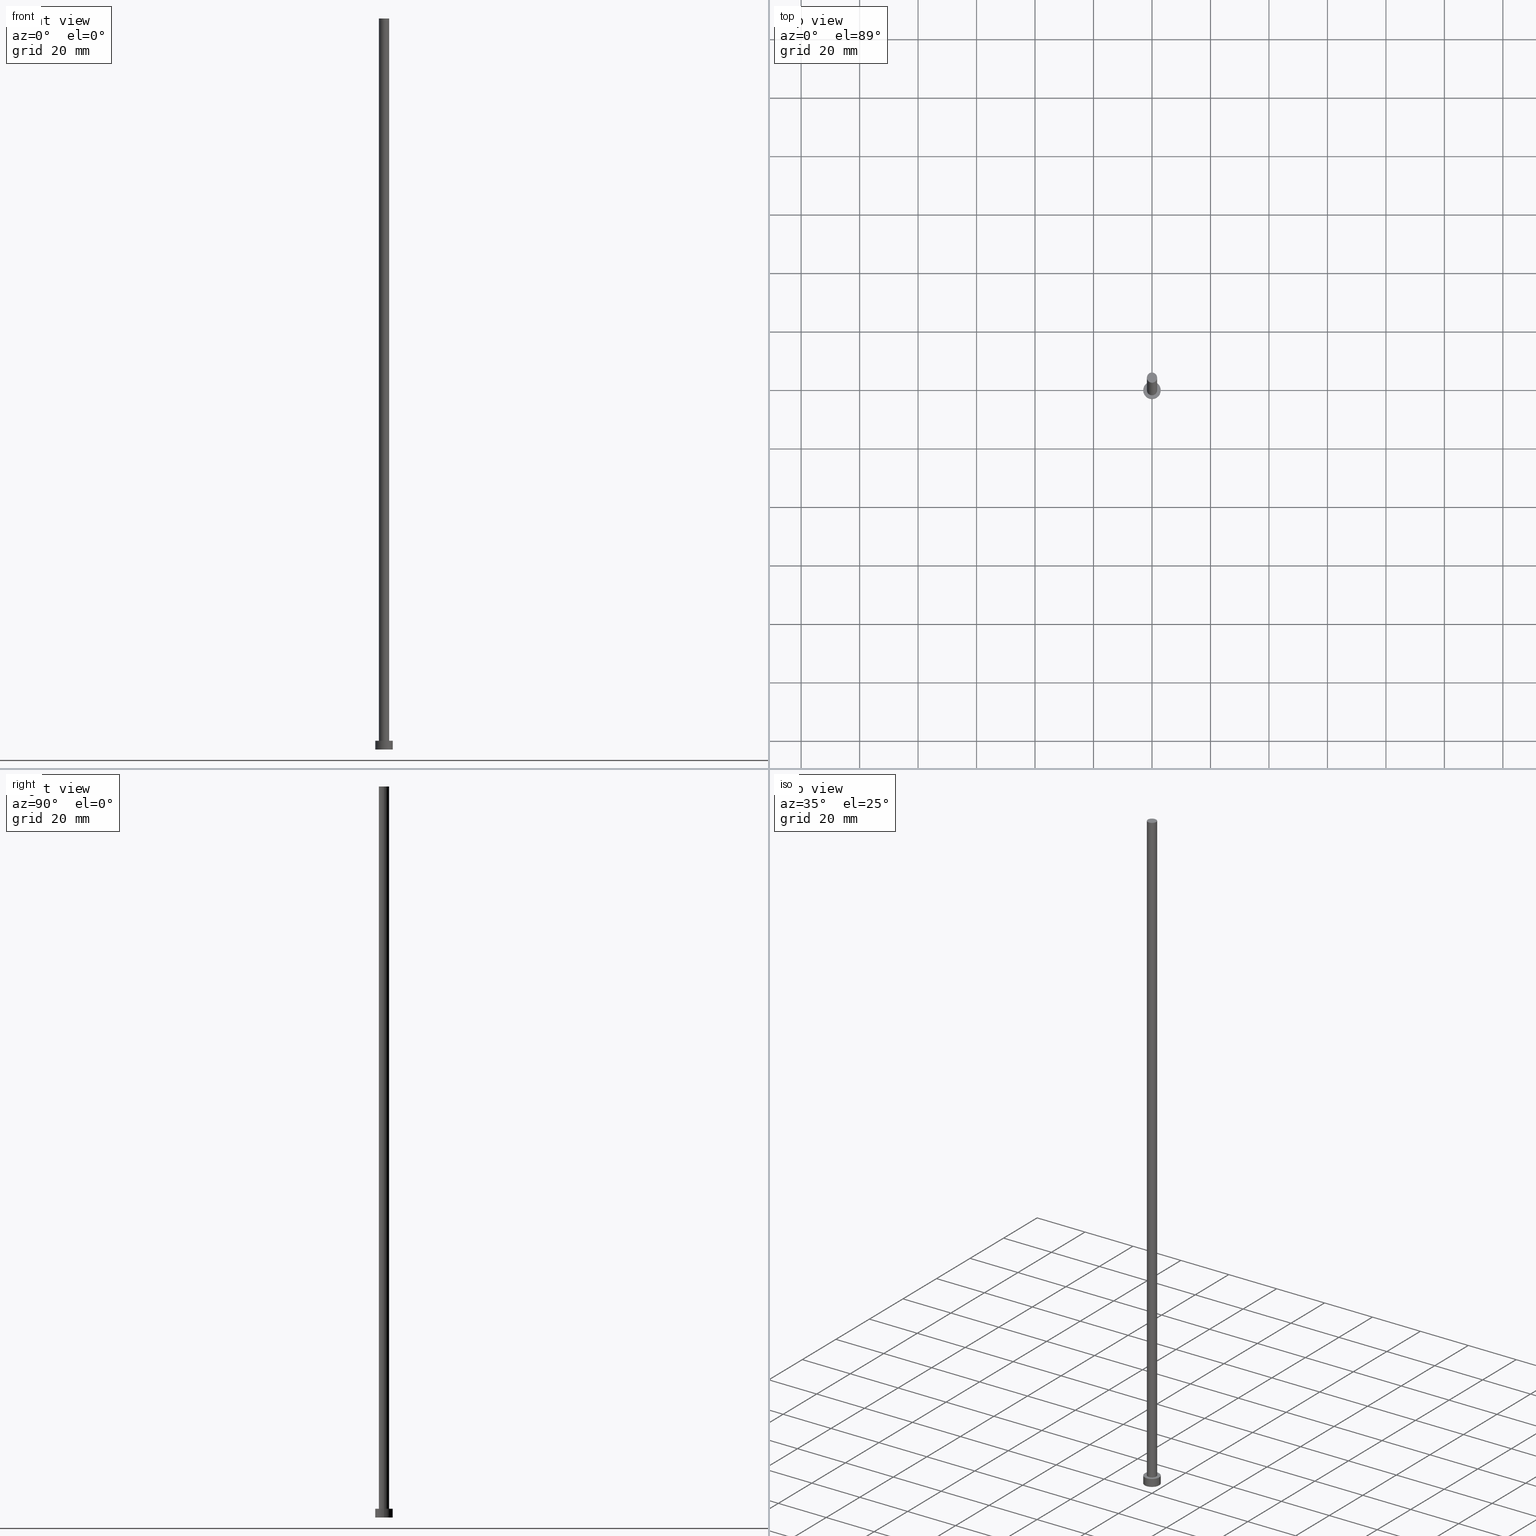
[diagram: canonical four-view strip — front | top / right | iso, engineering-drawing reading convention]
A machine part, canonical four-view strip (front | top / right | iso — engineering-drawing reading convention). The complete STEP part file that produces these views, byte-faithful:
ISO-10303-21;
HEADER;
FILE_DESCRIPTION (( 'STEP AP203' ),
    '1' );
FILE_NAME ('3142.STEP',
    '2023-02-13T16:50:39',
    ( '' ),
    ( '' ),
    'SwSTEP 2.0',
    'SolidWorks 2019',
    '' );
FILE_SCHEMA (( 'CONFIG_CONTROL_DESIGN' ));
ENDSEC;

DATA;
#1 = PERSON_AND_ORGANIZATION ( #132, #8 ) ;
#2 = LOCAL_TIME ( 17, 50, 39.00000000000000000, #230 ) ;
#3 = EDGE_LOOP ( 'NONE', ( #168, #253, #83, #150 ) ) ;
#4 = VECTOR ( 'NONE', #51, 1000.000000000000000 ) ;
#5 = DIRECTION ( 'NONE',  ( 0.000000000000000000, 0.000000000000000000, 1.000000000000000000 ) ) ;
#6 = ADVANCED_FACE ( 'NONE', ( #103, #154 ), #21, .T. ) ;
#7 = FACE_OUTER_BOUND ( 'NONE', #120, .T. ) ;
#8 = ORGANIZATION ( 'NEUR�EN�', 'NEUR�EN�', '' ) ;
#9 = CARTESIAN_POINT ( 'NONE',  ( -3.000000000000000444, 0.000000000000000000, 0.000000000000000000 ) ) ;
#10 = AXIS2_PLACEMENT_3D ( 'NONE', #156, #215, #42 ) ;
#11 = CARTESIAN_POINT ( 'NONE',  ( 0.000000000000000000, 0.000000000000000000, 250.0000000000000000 ) ) ;
#12 = DIRECTION ( 'NONE',  ( 0.000000000000000000, 0.000000000000000000, 1.000000000000000000 ) ) ;
#13 = ADVANCED_FACE ( 'NONE', ( #221 ), #102, .T. ) ;
#14 = DIRECTION ( 'NONE',  ( 1.000000000000000000, 0.000000000000000000, -0.000000000000000000 ) ) ;
#15 = CARTESIAN_POINT ( 'NONE',  ( 0.000000000000000000, 0.000000000000000000, 3.000000000000000000 ) ) ;
#16 = CIRCLE ( 'NONE', #62, 1.750000000000000000 ) ;
#17 = CC_DESIGN_PERSON_AND_ORGANIZATION_ASSIGNMENT ( #20, #233, ( #167 ) ) ;
#18 = ORIENTED_EDGE ( 'NONE', *, *, #79, .F. ) ;
#19 = AXIS2_PLACEMENT_3D ( 'NONE', #139, #242, #47 ) ;
#20 = PERSON_AND_ORGANIZATION ( #132, #8 ) ;
#21 = PLANE ( 'NONE',  #55 ) ;
#22 = APPROVAL_PERSON_ORGANIZATION ( #153, #93, #152 ) ;
#23 = EDGE_CURVE ( 'NONE', #26, #95, #88, .T. ) ;
#24 = ORIENTED_EDGE ( 'NONE', *, *, #85, .F. ) ;
#25 = DIRECTION ( 'NONE',  ( 1.000000000000000000, 0.000000000000000000, -0.000000000000000000 ) ) ;
#26 = VERTEX_POINT ( 'NONE', #138 ) ;
#27 = ORIENTED_EDGE ( 'NONE', *, *, #36, .T. ) ;
#28 = CARTESIAN_POINT ( 'NONE',  ( -3.000000000000000444, 0.000000000000000000, 3.000000000000000000 ) ) ;
#29 = DIRECTION ( 'NONE',  ( 1.000000000000000000, 0.000000000000000000, 0.000000000000000000 ) ) ;
#30 = AXIS2_PLACEMENT_3D ( 'NONE', #56, #94, #53 ) ;
#31 = EDGE_CURVE ( 'NONE', #95, #26, #130, .T. ) ;
#32 = VECTOR ( 'NONE', #193, 1000.000000000000000 ) ;
#33 = LINE ( 'NONE', #163, #4 ) ;
#34 = PERSON_AND_ORGANIZATION ( #132, #8 ) ;
#35 = AXIS2_PLACEMENT_3D ( 'NONE', #15, #12, #228 ) ;
#36 = EDGE_CURVE ( 'NONE', #148, #66, #75, .T. ) ;
#37 = DATE_TIME_ROLE ( 'classification_date' ) ;
#38 = SHAPE_DEFINITION_REPRESENTATION ( #210, #146 ) ;
#39 = AXIS2_PLACEMENT_3D ( 'NONE', #173, #107, #237 ) ;
#40 = ORIENTED_EDGE ( 'NONE', *, *, #79, .T. ) ;
#41 = EDGE_CURVE ( 'NONE', #254, #148, #44, .T. ) ;
#42 = DIRECTION ( 'NONE',  ( 1.000000000000000000, 0.000000000000000000, 0.000000000000000000 ) ) ;
#43 =( GEOMETRIC_REPRESENTATION_CONTEXT ( 3 ) GLOBAL_UNCERTAINTY_ASSIGNED_CONTEXT ( ( #111 ) ) GLOBAL_UNIT_ASSIGNED_CONTEXT ( ( #54, #74, #110 ) ) REPRESENTATION_CONTEXT ( 'NONE', 'WORKASPACE' ) );
#44 = LINE ( 'NONE', #122, #32 ) ;
#45 = ORIENTED_EDGE ( 'NONE', *, *, #206, .F. ) ;
#46 = ADVANCED_FACE ( 'NONE', ( #7 ), #105, .T. ) ;
#47 = DIRECTION ( 'NONE',  ( 1.000000000000000000, 0.000000000000000000, 0.000000000000000000 ) ) ;
#48 = LOCAL_TIME ( 17, 50, 39.00000000000000000, #101 ) ;
#49 = DIRECTION ( 'NONE',  ( 0.000000000000000000, 0.000000000000000000, 1.000000000000000000 ) ) ;
#50 = CLOSED_SHELL ( 'NONE', ( #13, #46, #227, #6, #82, #166, #236 ) ) ;
#51 = DIRECTION ( 'NONE',  ( -0.000000000000000000, -0.000000000000000000, -1.000000000000000000 ) ) ;
#52 = EDGE_CURVE ( 'NONE', #238, #254, #219, .T. ) ;
#53 = DIRECTION ( 'NONE',  ( -1.000000000000000000, 0.000000000000000000, 0.000000000000000000 ) ) ;
#54 =( LENGTH_UNIT ( ) NAMED_UNIT ( * ) SI_UNIT ( .MILLI., .METRE. ) );
#55 = AXIS2_PLACEMENT_3D ( 'NONE', #194, #5, #25 ) ;
#56 = CARTESIAN_POINT ( 'NONE',  ( 0.000000000000000000, 0.000000000000000000, 3.000000000000000000 ) ) ;
#57 = DATE_AND_TIME ( #116, #133 ) ;
#58 = COORDINATED_UNIVERSAL_TIME_OFFSET ( 1, 0, .AHEAD. ) ;
#59 = PERSON_AND_ORGANIZATION ( #132, #8 ) ;
#60 = COORDINATED_UNIVERSAL_TIME_OFFSET ( 1, 0, .AHEAD. ) ;
#61 = PERSON_AND_ORGANIZATION_ROLE ( 'design_supplier' ) ;
#62 = AXIS2_PLACEMENT_3D ( 'NONE', #90, #126, #29 ) ;
#63 = CC_DESIGN_DATE_AND_TIME_ASSIGNMENT ( #76, #212, ( #151 ) ) ;
#64 = EDGE_LOOP ( 'NONE', ( #165, #208, #218, #100 ) ) ;
#65 = CARTESIAN_POINT ( 'NONE',  ( 0.000000000000000000, 0.000000000000000000, 250.0000000000000000 ) ) ;
#66 = VERTEX_POINT ( 'NONE', #9 ) ;
#67 = CARTESIAN_POINT ( 'NONE',  ( 0.000000000000000000, 0.000000000000000000, 3.000000000000000000 ) ) ;
#68 = ORIENTED_EDGE ( 'NONE', *, *, #41, .T. ) ;
#69 = MECHANICAL_CONTEXT ( 'NONE', #176, 'mechanical' ) ;
#70 = DIRECTION ( 'NONE',  ( -0.000000000000000000, -0.000000000000000000, -1.000000000000000000 ) ) ;
#71 = DIRECTION ( 'NONE',  ( 0.000000000000000000, 0.000000000000000000, 1.000000000000000000 ) ) ;
#72 = PRODUCT_RELATED_PRODUCT_CATEGORY ( 'detail', '', ( #97 ) ) ;
#73 = DIRECTION ( 'NONE',  ( 1.000000000000000000, 0.000000000000000000, 0.000000000000000000 ) ) ;
#74 =( NAMED_UNIT ( * ) PLANE_ANGLE_UNIT ( ) SI_UNIT ( $, .RADIAN. ) );
#75 = CIRCLE ( 'NONE', #10, 3.000000000000000444 ) ;
#76 = DATE_AND_TIME ( #117, #48 ) ;
#77 = ORIENTED_EDGE ( 'NONE', *, *, #23, .F. ) ;
#78 = AXIS2_PLACEMENT_3D ( 'NONE', #11, #249, #162 ) ;
#79 = EDGE_CURVE ( 'NONE', #190, #89, #145, .T. ) ;
#80 = PERSON_AND_ORGANIZATION ( #132, #8 ) ;
#81 = CALENDAR_DATE ( 2023, 13, 2 ) ;
#82 = ADVANCED_FACE ( 'NONE', ( #141 ), #222, .F. ) ;
#83 = ORIENTED_EDGE ( 'NONE', *, *, #217, .T. ) ;
#84 = DIRECTION ( 'NONE',  ( 0.000000000000000000, 0.000000000000000000, 1.000000000000000000 ) ) ;
#85 = EDGE_CURVE ( 'NONE', #95, #89, #33, .T. ) ;
#86 = DIRECTION ( 'NONE',  ( -1.000000000000000000, 0.000000000000000000, 0.000000000000000000 ) ) ;
#87 = DIRECTION ( 'NONE',  ( 0.000000000000000000, 0.000000000000000000, 1.000000000000000000 ) ) ;
#88 = CIRCLE ( 'NONE', #188, 1.750000000000000000 ) ;
#89 = VERTEX_POINT ( 'NONE', #225 ) ;
#90 = CARTESIAN_POINT ( 'NONE',  ( 0.000000000000000000, 0.000000000000000000, 3.000000000000000000 ) ) ;
#91 = CARTESIAN_POINT ( 'NONE',  ( -1.750000000000000000, 0.000000000000000000, 3.000000000000000000 ) ) ;
#92 = FACE_OUTER_BOUND ( 'NONE', #180, .T. ) ;
#93 = APPROVAL ( #231, 'NEUR�EN�' ) ;
#94 = DIRECTION ( 'NONE',  ( -0.000000000000000000, -0.000000000000000000, -1.000000000000000000 ) ) ;
#95 = VERTEX_POINT ( 'NONE', #129 ) ;
#96 = EDGE_LOOP ( 'NONE', ( #240, #192 ) ) ;
#97 = PRODUCT ( '3142', '3142', '', ( #69 ) ) ;
#98 = APPROVAL_ROLE ( '' ) ;
#99 = AXIS2_PLACEMENT_3D ( 'NONE', #201, #248, #73 ) ;
#100 = ORIENTED_EDGE ( 'NONE', *, *, #178, .F. ) ;
#101 = COORDINATED_UNIVERSAL_TIME_OFFSET ( 1, 0, .AHEAD. ) ;
#102 = CYLINDRICAL_SURFACE ( 'NONE', #39, 1.750000000000000000 ) ;
#103 = FACE_BOUND ( 'NONE', #123, .T. ) ;
#104 = EDGE_CURVE ( 'NONE', #66, #148, #250, .T. ) ;
#105 = CYLINDRICAL_SURFACE ( 'NONE', #213, 3.000000000000000444 ) ;
#106 = CARTESIAN_POINT ( 'NONE',  ( 0.000000000000000000, 0.000000000000000000, 3.000000000000000000 ) ) ;
#107 = DIRECTION ( 'NONE',  ( -0.000000000000000000, -0.000000000000000000, -1.000000000000000000 ) ) ;
#108 = AXIS2_PLACEMENT_3D ( 'NONE', #195, #49, #243 ) ;
#109 = CC_DESIGN_PERSON_AND_ORGANIZATION_ASSIGNMENT ( #1, #187, ( #196 ) ) ;
#110 =( NAMED_UNIT ( * ) SI_UNIT ( $, .STERADIAN. ) SOLID_ANGLE_UNIT ( ) );
#111 = UNCERTAINTY_MEASURE_WITH_UNIT (LENGTH_MEASURE( 1.000000000000000082E-05 ), #54, 'distance_accuracy_value', 'NONE');
#112 = CARTESIAN_POINT ( 'NONE',  ( 0.000000000000000000, 0.000000000000000000, 250.0000000000000000 ) ) ;
#113 = CC_DESIGN_SECURITY_CLASSIFICATION ( #167, ( #196 ) ) ;
#114 = FACE_OUTER_BOUND ( 'NONE', #142, .T. ) ;
#115 = DIRECTION ( 'NONE',  ( 1.000000000000000000, 0.000000000000000000, 0.000000000000000000 ) ) ;
#116 = CALENDAR_DATE ( 2023, 13, 2 ) ;
#117 = CALENDAR_DATE ( 2023, 13, 2 ) ;
#118 = ORIENTED_EDGE ( 'NONE', *, *, #178, .T. ) ;
#119 = VECTOR ( 'NONE', #70, 1000.000000000000000 ) ;
#120 = EDGE_LOOP ( 'NONE', ( #45, #68, #27, #157 ) ) ;
#121 = ORIENTED_EDGE ( 'NONE', *, *, #206, .T. ) ;
#122 = CARTESIAN_POINT ( 'NONE',  ( 3.000000000000000444, 3.673940397442060361E-16, 3.000000000000000000 ) ) ;
#123 = EDGE_LOOP ( 'NONE', ( #18, #175 ) ) ;
#124 = DIRECTION ( 'NONE',  ( -0.000000000000000000, -0.000000000000000000, -1.000000000000000000 ) ) ;
#125 = CIRCLE ( 'NONE', #35, 3.000000000000000444 ) ;
#126 = DIRECTION ( 'NONE',  ( 0.000000000000000000, 0.000000000000000000, 1.000000000000000000 ) ) ;
#127 = DIRECTION ( 'NONE',  ( -0.000000000000000000, -0.000000000000000000, -1.000000000000000000 ) ) ;
#128 = CC_DESIGN_APPROVAL ( #203, ( #167 ) ) ;
#129 = CARTESIAN_POINT ( 'NONE',  ( 1.750000000000000000, 2.143131898507868297E-16, 250.0000000000000000 ) ) ;
#130 = CIRCLE ( 'NONE', #19, 1.750000000000000000 ) ;
#131 = APPLICATION_PROTOCOL_DEFINITION ( 'international standard', 'config_control_design', 1994, #176 ) ;
#132 = PERSON ( 'NEUR�EN�', 'NEUR�EN�', 'NEUR�EN�', ('NEUR�EN�'), ('NEUR�EN�'), ('NEUR�EN�') ) ;
#133 = LOCAL_TIME ( 17, 50, 39.00000000000000000, #204 ) ;
#134 = DATE_AND_TIME ( #185, #239 ) ;
#135 = APPROVAL_DATE_TIME ( #252, #93 ) ;
#136 = APPROVAL_STATUS ( 'not_yet_approved' ) ;
#137 = APPROVAL_STATUS ( 'not_yet_approved' ) ;
#138 = CARTESIAN_POINT ( 'NONE',  ( -1.750000000000000000, 0.000000000000000000, 250.0000000000000000 ) ) ;
#139 = CARTESIAN_POINT ( 'NONE',  ( 0.000000000000000000, 0.000000000000000000, 250.0000000000000000 ) ) ;
#140 = ORIENTED_EDGE ( 'NONE', *, *, #31, .T. ) ;
#141 = FACE_OUTER_BOUND ( 'NONE', #96, .T. ) ;
#142 = EDGE_LOOP ( 'NONE', ( #24, #77, #118, #40 ) ) ;
#143 = CARTESIAN_POINT ( 'NONE',  ( 3.000000000000000444, 3.673940397442060361E-16, 0.000000000000000000 ) ) ;
#144 = CYLINDRICAL_SURFACE ( 'NONE', #78, 1.750000000000000000 ) ;
#145 = CIRCLE ( 'NONE', #174, 1.750000000000000000 ) ;
#146 = ADVANCED_BREP_SHAPE_REPRESENTATION ( '3142', ( #244, #99 ), #43 ) ;
#147 = APPROVAL_ROLE ( '' ) ;
#148 = VERTEX_POINT ( 'NONE', #143 ) ;
#149 = APPROVAL_DATE_TIME ( #134, #158 ) ;
#150 = ORIENTED_EDGE ( 'NONE', *, *, #104, .T. ) ;
#151 = PRODUCT_DEFINITION ( 'NEZN�M�', '', #196, #205 ) ;
#152 = APPROVAL_ROLE ( '' ) ;
#153 = PERSON_AND_ORGANIZATION ( #132, #8 ) ;
#154 = FACE_OUTER_BOUND ( 'NONE', #223, .T. ) ;
#155 = CC_DESIGN_DATE_AND_TIME_ASSIGNMENT ( #251, #37, ( #167 ) ) ;
#156 = CARTESIAN_POINT ( 'NONE',  ( 0.000000000000000000, 0.000000000000000000, 0.000000000000000000 ) ) ;
#157 = ORIENTED_EDGE ( 'NONE', *, *, #217, .F. ) ;
#158 = APPROVAL ( #136, 'NEUR�EN�' ) ;
#159 = DIRECTION ( 'NONE',  ( 0.000000000000000000, 0.000000000000000000, 1.000000000000000000 ) ) ;
#160 = DIRECTION ( 'NONE',  ( 1.000000000000000000, 0.000000000000000000, 0.000000000000000000 ) ) ;
#161 = CARTESIAN_POINT ( 'NONE',  ( 3.000000000000000444, 3.673940397442060361E-16, 3.000000000000000000 ) ) ;
#162 = DIRECTION ( 'NONE',  ( -1.000000000000000000, 0.000000000000000000, 0.000000000000000000 ) ) ;
#163 = CARTESIAN_POINT ( 'NONE',  ( 1.750000000000000000, 2.143131898507868297E-16, 250.0000000000000000 ) ) ;
#164 = PERSON_AND_ORGANIZATION ( #132, #8 ) ;
#165 = ORIENTED_EDGE ( 'NONE', *, *, #31, .F. ) ;
#166 = ADVANCED_FACE ( 'NONE', ( #114 ), #144, .T. ) ;
#167 = SECURITY_CLASSIFICATION ( '', '', #234 ) ;
#168 = ORIENTED_EDGE ( 'NONE', *, *, #41, .F. ) ;
#169 = APPROVAL_DATE_TIME ( #57, #203 ) ;
#170 = CALENDAR_DATE ( 2023, 13, 2 ) ;
#171 = APPROVAL_PERSON_ORGANIZATION ( #34, #158, #147 ) ;
#172 = EDGE_CURVE ( 'NONE', #89, #190, #16, .T. ) ;
#173 = CARTESIAN_POINT ( 'NONE',  ( 0.000000000000000000, 0.000000000000000000, 250.0000000000000000 ) ) ;
#174 = AXIS2_PLACEMENT_3D ( 'NONE', #67, #87, #241 ) ;
#175 = ORIENTED_EDGE ( 'NONE', *, *, #172, .F. ) ;
#176 = APPLICATION_CONTEXT ( 'configuration controlled 3d designs of mechanical parts and assemblies' ) ;
#177 = CARTESIAN_POINT ( 'NONE',  ( 0.000000000000000000, 0.000000000000000000, 3.000000000000000000 ) ) ;
#178 = EDGE_CURVE ( 'NONE', #26, #190, #226, .T. ) ;
#179 = DIRECTION ( 'NONE',  ( 1.000000000000000000, 0.000000000000000000, 0.000000000000000000 ) ) ;
#180 = EDGE_LOOP ( 'NONE', ( #214, #140 ) ) ;
#181 = CARTESIAN_POINT ( 'NONE',  ( -3.000000000000000444, 0.000000000000000000, 3.000000000000000000 ) ) ;
#182 = FACE_OUTER_BOUND ( 'NONE', #3, .T. ) ;
#183 = DIRECTION ( 'NONE',  ( 0.000000000000000000, 0.000000000000000000, 1.000000000000000000 ) ) ;
#184 = CC_DESIGN_APPROVAL ( #158, ( #196 ) ) ;
#185 = CALENDAR_DATE ( 2023, 13, 2 ) ;
#186 = ORIENTED_EDGE ( 'NONE', *, *, #52, .T. ) ;
#187 = PERSON_AND_ORGANIZATION_ROLE ( 'creator' ) ;
#188 = AXIS2_PLACEMENT_3D ( 'NONE', #65, #84, #160 ) ;
#189 = PERSON_AND_ORGANIZATION_ROLE ( 'design_owner' ) ;
#190 = VERTEX_POINT ( 'NONE', #91 ) ;
#191 = VECTOR ( 'NONE', #127, 1000.000000000000000 ) ;
#192 = ORIENTED_EDGE ( 'NONE', *, *, #36, .F. ) ;
#193 = DIRECTION ( 'NONE',  ( -0.000000000000000000, -0.000000000000000000, -1.000000000000000000 ) ) ;
#194 = CARTESIAN_POINT ( 'NONE',  ( 0.000000000000000000, 0.000000000000000000, 3.000000000000000000 ) ) ;
#195 = CARTESIAN_POINT ( 'NONE',  ( 0.000000000000000000, 0.000000000000000000, 0.000000000000000000 ) ) ;
#196 = PRODUCT_DEFINITION_FORMATION_WITH_SPECIFIED_SOURCE ( 'LIBOVOLN�', '', #97, .NOT_KNOWN. ) ;
#197 = LINE ( 'NONE', #28, #119 ) ;
#198 = CARTESIAN_POINT ( 'NONE',  ( 0.000000000000000000, 0.000000000000000000, 0.000000000000000000 ) ) ;
#199 = CARTESIAN_POINT ( 'NONE',  ( -1.750000000000000000, 0.000000000000000000, 250.0000000000000000 ) ) ;
#200 = APPROVAL_PERSON_ORGANIZATION ( #59, #203, #98 ) ;
#201 = CARTESIAN_POINT ( 'NONE',  ( 0.000000000000000000, 0.000000000000000000, 0.000000000000000000 ) ) ;
#202 = AXIS2_PLACEMENT_3D ( 'NONE', #106, #159, #179 ) ;
#203 = APPROVAL ( #137, 'NEUR�EN�' ) ;
#204 = COORDINATED_UNIVERSAL_TIME_OFFSET ( 1, 0, .AHEAD. ) ;
#205 = DESIGN_CONTEXT ( 'detailed design', #220, 'design' ) ;
#206 = EDGE_CURVE ( 'NONE', #254, #238, #125, .T. ) ;
#207 = PERSON_AND_ORGANIZATION ( #132, #8 ) ;
#208 = ORIENTED_EDGE ( 'NONE', *, *, #85, .T. ) ;
#209 = APPLICATION_PROTOCOL_DEFINITION ( 'international standard', 'config_control_design', 1994, #220 ) ;
#210 = PRODUCT_DEFINITION_SHAPE ( 'NONE', 'NONE',  #151 ) ;
#211 = CC_DESIGN_APPROVAL ( #93, ( #151 ) ) ;
#212 = DATE_TIME_ROLE ( 'creation_date' ) ;
#213 = AXIS2_PLACEMENT_3D ( 'NONE', #177, #124, #86 ) ;
#214 = ORIENTED_EDGE ( 'NONE', *, *, #23, .T. ) ;
#215 = DIRECTION ( 'NONE',  ( 0.000000000000000000, 0.000000000000000000, 1.000000000000000000 ) ) ;
#216 = LOCAL_TIME ( 17, 50, 39.00000000000000000, #58 ) ;
#217 = EDGE_CURVE ( 'NONE', #238, #66, #197, .T. ) ;
#218 = ORIENTED_EDGE ( 'NONE', *, *, #172, .T. ) ;
#219 = CIRCLE ( 'NONE', #202, 3.000000000000000444 ) ;
#220 = APPLICATION_CONTEXT ( 'configuration controlled 3d designs of mechanical parts and assemblies' ) ;
#221 = FACE_OUTER_BOUND ( 'NONE', #64, .T. ) ;
#222 = PLANE ( 'NONE',  #108 ) ;
#223 = EDGE_LOOP ( 'NONE', ( #186, #121 ) ) ;
#224 = CC_DESIGN_PERSON_AND_ORGANIZATION_ASSIGNMENT ( #164, #235, ( #151 ) ) ;
#225 = CARTESIAN_POINT ( 'NONE',  ( 1.750000000000000000, 2.143131898507868297E-16, 3.000000000000000000 ) ) ;
#226 = LINE ( 'NONE', #199, #191 ) ;
#227 = ADVANCED_FACE ( 'NONE', ( #182 ), #247, .T. ) ;
#228 = DIRECTION ( 'NONE',  ( 1.000000000000000000, 0.000000000000000000, 0.000000000000000000 ) ) ;
#229 = AXIS2_PLACEMENT_3D ( 'NONE', #198, #183, #115 ) ;
#230 = COORDINATED_UNIVERSAL_TIME_OFFSET ( 1, 0, .AHEAD. ) ;
#231 = APPROVAL_STATUS ( 'not_yet_approved' ) ;
#232 = AXIS2_PLACEMENT_3D ( 'NONE', #112, #71, #14 ) ;
#233 = PERSON_AND_ORGANIZATION_ROLE ( 'classification_officer' ) ;
#234 = SECURITY_CLASSIFICATION_LEVEL ( 'unclassified' ) ;
#235 = PERSON_AND_ORGANIZATION_ROLE ( 'creator' ) ;
#236 = ADVANCED_FACE ( 'NONE', ( #92 ), #245, .T. ) ;
#237 = DIRECTION ( 'NONE',  ( -1.000000000000000000, 0.000000000000000000, 0.000000000000000000 ) ) ;
#238 = VERTEX_POINT ( 'NONE', #181 ) ;
#239 = LOCAL_TIME ( 17, 50, 39.00000000000000000, #60 ) ;
#240 = ORIENTED_EDGE ( 'NONE', *, *, #104, .F. ) ;
#241 = DIRECTION ( 'NONE',  ( 1.000000000000000000, 0.000000000000000000, 0.000000000000000000 ) ) ;
#242 = DIRECTION ( 'NONE',  ( 0.000000000000000000, 0.000000000000000000, 1.000000000000000000 ) ) ;
#243 = DIRECTION ( 'NONE',  ( 1.000000000000000000, 0.000000000000000000, -0.000000000000000000 ) ) ;
#244 = MANIFOLD_SOLID_BREP ( 'P�idat vysunut�m3', #50 ) ;
#245 = PLANE ( 'NONE',  #232 ) ;
#246 = CC_DESIGN_PERSON_AND_ORGANIZATION_ASSIGNMENT ( #80, #189, ( #97 ) ) ;
#247 = CYLINDRICAL_SURFACE ( 'NONE', #30, 3.000000000000000444 ) ;
#248 = DIRECTION ( 'NONE',  ( 0.000000000000000000, 0.000000000000000000, 1.000000000000000000 ) ) ;
#249 = DIRECTION ( 'NONE',  ( -0.000000000000000000, -0.000000000000000000, -1.000000000000000000 ) ) ;
#250 = CIRCLE ( 'NONE', #229, 3.000000000000000444 ) ;
#251 = DATE_AND_TIME ( #81, #2 ) ;
#252 = DATE_AND_TIME ( #170, #216 ) ;
#253 = ORIENTED_EDGE ( 'NONE', *, *, #52, .F. ) ;
#254 = VERTEX_POINT ( 'NONE', #161 ) ;
#255 = CC_DESIGN_PERSON_AND_ORGANIZATION_ASSIGNMENT ( #207, #61, ( #196 ) ) ;
ENDSEC;
END-ISO-10303-21;
